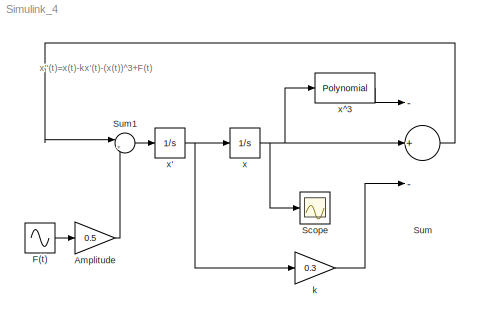
MODEL Simulink_4
KIND model
BLOCK [Gain] Amplitude
  Gain = 0.5
  SID = 1
BLOCK [Sin] F(t)
  Frequency = 1.25
  Phase = pi/2
  Ports = [0, 1]
  SID = 2
  SampleTime = 0
BLOCK [Scope] Scope
  Floating = off
  NumInputPorts = 1
  Ports = [1]
  SID = 3
  ScopeSpecificationString = C++SS(StrPVP('Location','[679, 210, 1003, 449]'),StrPVP('Open','on'),MxPVP('AxesTitles',54,'struct(''axes1'',''%<SignalLabel>'')'),StrPVP('DataFormat','StructureWithTime'),StrPVP('LimitDataPoints','on'),StrPVP('Decimation','1'),StrPVP('BlockParamSampleInput','off'))
BLOCK [Sum] Sum
  InputSameDT = off
  Inputs = -+-
  OutDataTypeStr = Inherit: Inherit via internal rule
  Ports = [3, 1]
  SID = 4
BLOCK [Sum] Sum1
  IconShape = round
  InputSameDT = off
  Inputs = |++
  OutDataTypeStr = Inherit: Inherit via internal rule
  Ports = [2, 1]
  SID = 5
BLOCK [Gain] k
  Gain = 0.3
  SID = 6
BLOCK [Integrator] x
  InitialCondition = 1
  Ports = [1, 1]
  SID = 7
BLOCK [Integrator] x'
  InitialCondition = 1
  Ports = [1, 1]
  SID = 8
BLOCK [Reference] x^3  REF=simulink/Math\nOperations/Polynomial
  Ports = [1, 1]
  SID = 9
  SourceBlock = simulink/Math\nOperations/Polynomial
  SourceProductBaseCode = SL
  SourceProductName = Simulink
  SourceType = Polyval
  coefs = [1,0,0,0]
ANNOTATION (root): x''(t)=x(t)-kx'(t)-(x(t))^3+F(t)
LINE Amplitude:1 -> Sum1:2
LINE F(t):1 -> Amplitude:1
LINE Sum1:1 -> x':1
LINE Sum:1 -> Sum1:1
LINE k:1 -> Sum:3
NET x':1 -> k:1, x:1
NET x:1 -> Scope:1, Sum:2, x^3:1
LINE x^3:1 -> Sum:1
note: NET lines group one-source signal fan-out (src -> all destinations, sorted); 1:1 wires keep LINE
